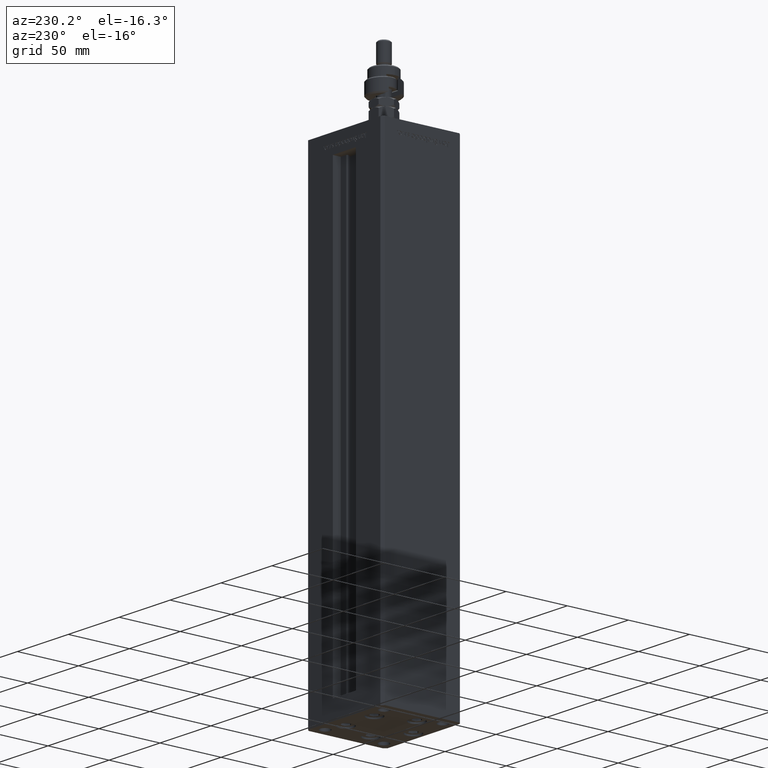
[diagram: clean part render]
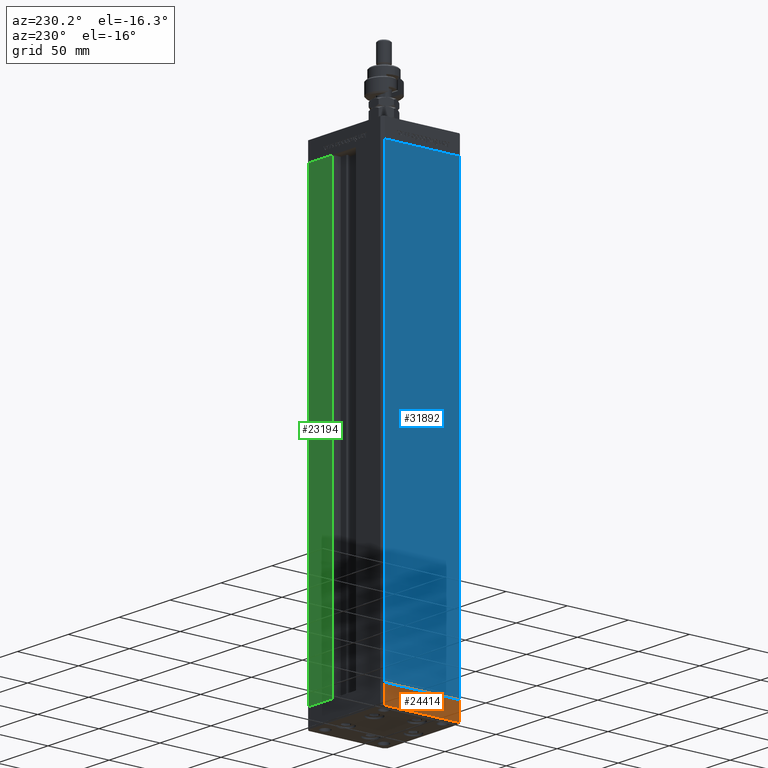
[diagram: same view with three faces highlighted in distinct colors, each labeled with its STEP entity id]
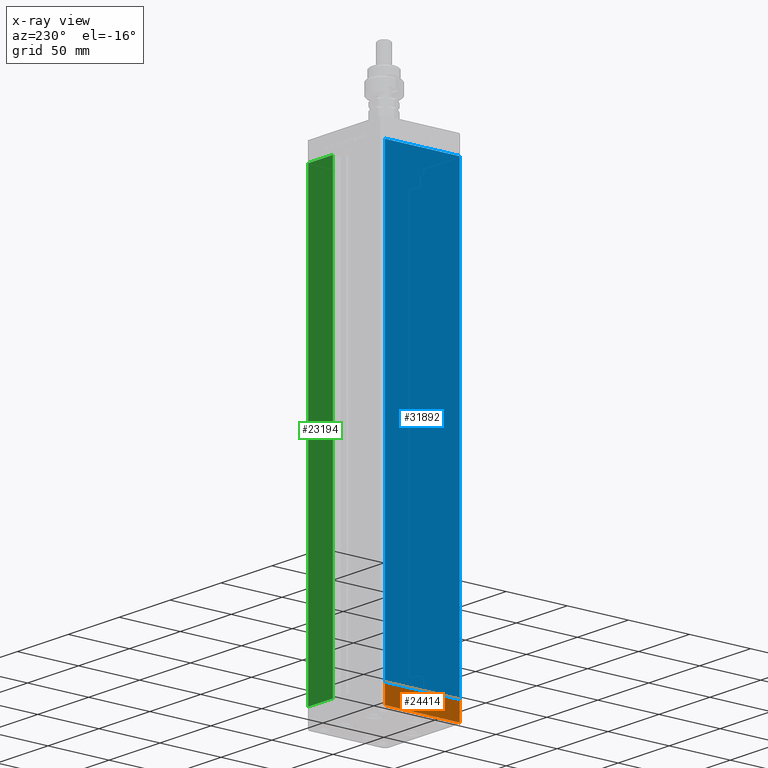
[diagram: x-ray of the same camera — body ghosted, the three highlighted faces saturated]
A machine part, auxiliary view with three faces highlighted in distinct colors.
The next image is the same camera in x-ray (body ghosted, the three faces saturated) — at least one of them is partly hidden behind the body in this view.
Their STEP definitions:

[orange] entity #24414 — the highlighted planar face has unit normal (-1, 0, 0).
#797 = VECTOR ( 'NONE', #6358, 1000.000000000000000 ) ;
#1475 = ORIENTED_EDGE ( 'NONE', *, *, #44749, .T. ) ;
#6358 = DIRECTION ( 'NONE',  ( -1.478780668045802821E-15, 1.000000000000000000, 0.000000000000000000 ) ) ;
#8360 = ORIENTED_EDGE ( 'NONE', *, *, #31696, .T. ) ;
#8759 = DIRECTION ( 'NONE',  ( 0.000000000000000000, 0.000000000000000000, 1.000000000000000000 ) ) ;
#9574 = LINE ( 'NONE', #38282, #36270 ) ;
#11578 = DIRECTION ( 'NONE',  ( 1.000000000000000000, 1.478780668045803018E-15, -0.000000000000000000 ) ) ;
#12737 = VERTEX_POINT ( 'NONE', #53341 ) ;
#15924 = LINE ( 'NONE', #50683, #48140 ) ;
#16729 = DIRECTION ( 'NONE',  ( -1.478780668045802821E-15, 1.000000000000000000, 0.000000000000000000 ) ) ;
#20604 = EDGE_CURVE ( 'NONE', #49460, #12737, #44450, .T. ) ;
#21338 = CARTESIAN_POINT ( 'NONE',  ( 37.49999999999992184, 30.50000000000001066, -15.00000000000000000 ) ) ;
#21935 = LINE ( 'NONE', #34622, #48370 ) ;
#23670 = CARTESIAN_POINT ( 'NONE',  ( 37.50000000000001421, -30.50000000000000711, -15.00000000000000000 ) ) ;
#24414 = ADVANCED_FACE ( 'NONE', ( #53829 ), #25102, .T. ) ;
#25102 = PLANE ( 'NONE',  #32538 ) ;
#26075 = EDGE_LOOP ( 'NONE', ( #30972, #37011, #1475, #8360 ) ) ;
#26078 = DIRECTION ( 'NONE',  ( 0.000000000000000000, 0.000000000000000000, 1.000000000000000000 ) ) ;
#28988 = DIRECTION ( 'NONE',  ( -1.478780668045803018E-15, 1.000000000000000000, 0.000000000000000000 ) ) ;
#29929 = VERTEX_POINT ( 'NONE', #21338 ) ;
#30972 = ORIENTED_EDGE ( 'NONE', *, *, #20604, .F. ) ;
#31696 = EDGE_CURVE ( 'NONE', #29929, #12737, #9574, .T. ) ;
#32538 = AXIS2_PLACEMENT_3D ( 'NONE', #49130, #11578, #28988 ) ;
#32790 = VERTEX_POINT ( 'NONE', #23670 ) ;
#34622 = CARTESIAN_POINT ( 'NONE',  ( 37.50000000000001421, -30.50000000000000711, -15.00000000000000000 ) ) ;
#36270 = VECTOR ( 'NONE', #8759, 1000.000000000000000 ) ;
#37011 = ORIENTED_EDGE ( 'NONE', *, *, #52774, .F. ) ;
#38282 = CARTESIAN_POINT ( 'NONE',  ( 37.49999999999992184, 30.50000000000001066, -15.00000000000000000 ) ) ;
#43460 = CARTESIAN_POINT ( 'NONE',  ( 37.50000000000001421, -30.50000000000000711, 0.000000000000000000 ) ) ;
#43644 = CARTESIAN_POINT ( 'NONE',  ( 37.50000000000001421, -30.50000000000000711, 0.000000000000000000 ) ) ;
#44450 = LINE ( 'NONE', #43644, #797 ) ;
#44749 = EDGE_CURVE ( 'NONE', #32790, #29929, #15924, .T. ) ;
#48140 = VECTOR ( 'NONE', #16729, 1000.000000000000000 ) ;
#48370 = VECTOR ( 'NONE', #26078, 1000.000000000000000 ) ;
#49130 = CARTESIAN_POINT ( 'NONE',  ( 37.50000000000001421, -30.50000000000000711, -15.00000000000000000 ) ) ;
#49460 = VERTEX_POINT ( 'NONE', #43460 ) ;
#50683 = CARTESIAN_POINT ( 'NONE',  ( 37.50000000000001421, -30.50000000000000711, -15.00000000000000000 ) ) ;
#52774 = EDGE_CURVE ( 'NONE', #32790, #49460, #21935, .T. ) ;
#53341 = CARTESIAN_POINT ( 'NONE',  ( 37.49999999999992184, 30.50000000000001066, 0.000000000000000000 ) ) ;
#53829 = FACE_OUTER_BOUND ( 'NONE', #26075, .T. ) ;

[blue] entity #31892 — the highlighted planar face has unit normal (1, 0, 0).
#2224 = CARTESIAN_POINT ( 'NONE',  ( -37.49999999999999289, -30.50000000000000000, 0.000000000000000000 ) ) ;
#2612 = VECTOR ( 'NONE', #45620, 1000.000000000000000 ) ;
#2646 = FACE_OUTER_BOUND ( 'NONE', #34105, .T. ) ;
#5186 = VECTOR ( 'NONE', #25203, 1000.000000000000000 ) ;
#6085 = VECTOR ( 'NONE', #41268, 1000.000000000000000 ) ;
#9632 = VERTEX_POINT ( 'NONE', #2224 ) ;
#10980 = DIRECTION ( 'NONE',  ( 2.275047181608927644E-16, -1.000000000000000000, 0.000000000000000000 ) ) ;
#13575 = LINE ( 'NONE', #22399, #20902 ) ;
#14154 = CARTESIAN_POINT ( 'NONE',  ( -37.49999999999999289, -30.50000000000000000, 356.0000000000000000 ) ) ;
#14262 = DIRECTION ( 'NONE',  ( -2.275047181608927644E-16, 1.000000000000000000, 0.000000000000000000 ) ) ;
#16921 = ORIENTED_EDGE ( 'NONE', *, *, #21332, .T. ) ;
#17220 = LINE ( 'NONE', #24429, #6085 ) ;
#18692 = ORIENTED_EDGE ( 'NONE', *, *, #47259, .F. ) ;
#19486 = CARTESIAN_POINT ( 'NONE',  ( -37.50000000000000711, 30.50000000000000000, 356.0000000000000000 ) ) ;
#20902 = VECTOR ( 'NONE', #10980, 1000.000000000000000 ) ;
#21236 = CARTESIAN_POINT ( 'NONE',  ( -37.50000000000000711, 30.50000000000000000, 356.0000000000000000 ) ) ;
#21294 = AXIS2_PLACEMENT_3D ( 'NONE', #19486, #39923, #14262 ) ;
#21332 = EDGE_CURVE ( 'NONE', #23732, #9632, #28797, .T. ) ;
#22399 = CARTESIAN_POINT ( 'NONE',  ( -37.50000000000000711, 30.50000000000000000, 356.0000000000000000 ) ) ;
#22540 = PLANE ( 'NONE',  #21294 ) ;
#23732 = VERTEX_POINT ( 'NONE', #52092 ) ;
#24255 = EDGE_CURVE ( 'NONE', #46180, #23732, #46986, .T. ) ;
#24372 = CARTESIAN_POINT ( 'NONE',  ( -37.50000000000000711, 30.50000000000000000, 0.000000000000000000 ) ) ;
#24429 = CARTESIAN_POINT ( 'NONE',  ( -37.49999999999999289, -30.50000000000000000, 356.0000000000000000 ) ) ;
#24688 = EDGE_CURVE ( 'NONE', #35265, #9632, #17220, .T. ) ;
#25203 = DIRECTION ( 'NONE',  ( -0.000000000000000000, -0.000000000000000000, -1.000000000000000000 ) ) ;
#28797 = LINE ( 'NONE', #24372, #2612 ) ;
#29885 = CARTESIAN_POINT ( 'NONE',  ( -37.50000000000000711, 30.50000000000000000, 356.0000000000000000 ) ) ;
#30496 = ORIENTED_EDGE ( 'NONE', *, *, #24255, .T. ) ;
#31892 = ADVANCED_FACE ( 'NONE', ( #2646 ), #22540, .F. ) ;
#34105 = EDGE_LOOP ( 'NONE', ( #16921, #39054, #18692, #30496 ) ) ;
#35265 = VERTEX_POINT ( 'NONE', #14154 ) ;
#39054 = ORIENTED_EDGE ( 'NONE', *, *, #24688, .F. ) ;
#39923 = DIRECTION ( 'NONE',  ( 1.000000000000000000, 2.275047181608927644E-16, -0.000000000000000000 ) ) ;
#41268 = DIRECTION ( 'NONE',  ( -0.000000000000000000, -0.000000000000000000, -1.000000000000000000 ) ) ;
#45620 = DIRECTION ( 'NONE',  ( 2.275047181608927644E-16, -1.000000000000000000, 0.000000000000000000 ) ) ;
#46180 = VERTEX_POINT ( 'NONE', #21236 ) ;
#46986 = LINE ( 'NONE', #29885, #5186 ) ;
#47259 = EDGE_CURVE ( 'NONE', #46180, #35265, #13575, .T. ) ;
#52092 = CARTESIAN_POINT ( 'NONE',  ( -37.50000000000000711, 30.50000000000000000, 0.000000000000000000 ) ) ;

[green] entity #23194 — the highlighted planar face has unit normal (0, -1, 0).
#24 = LINE ( 'NONE', #25689, #39364 ) ;
#3997 = EDGE_CURVE ( 'NONE', #23381, #9580, #30207, .T. ) ;
#6908 = AXIS2_PLACEMENT_3D ( 'NONE', #43989, #44258, #13905 ) ;
#9215 = DIRECTION ( 'NONE',  ( -1.000000000000000000, 0.000000000000000000, 0.000000000000000000 ) ) ;
#9580 = VERTEX_POINT ( 'NONE', #27635 ) ;
#11598 = ORIENTED_EDGE ( 'NONE', *, *, #14169, .T. ) ;
#12981 = DIRECTION ( 'NONE',  ( 1.000000000000000000, 0.000000000000000000, 0.000000000000000000 ) ) ;
#13294 = CARTESIAN_POINT ( 'NONE',  ( 35.50000000000000000, 32.49999999999999289, 0.000000000000000000 ) ) ;
#13709 = EDGE_CURVE ( 'NONE', #22129, #48532, #24, .T. ) ;
#13905 = DIRECTION ( 'NONE',  ( 0.000000000000000000, -0.000000000000000000, -1.000000000000000000 ) ) ;
#14169 = EDGE_CURVE ( 'NONE', #9580, #22129, #48771, .T. ) ;
#15642 = CARTESIAN_POINT ( 'NONE',  ( 11.25000000000000178, 32.49999999999999289, 0.000000000000000000 ) ) ;
#20354 = VECTOR ( 'NONE', #31691, 1000.000000000000000 ) ;
#22129 = VERTEX_POINT ( 'NONE', #25977 ) ;
#23194 = ADVANCED_FACE ( 'NONE', ( #47862 ), #27162, .F. ) ;
#23381 = VERTEX_POINT ( 'NONE', #13294 ) ;
#24200 = DIRECTION ( 'NONE',  ( -0.000000000000000000, -0.000000000000000000, 1.000000000000000000 ) ) ;
#24492 = CARTESIAN_POINT ( 'NONE',  ( 35.50000000000000000, 32.49999999999999289, 356.0000000000000000 ) ) ;
#25689 = CARTESIAN_POINT ( 'NONE',  ( -11.25000000000000178, 32.49999999999999289, 356.0000000000000000 ) ) ;
#25977 = CARTESIAN_POINT ( 'NONE',  ( 11.24999999999999467, 32.49999999999999289, 356.0000000000000000 ) ) ;
#26533 = EDGE_LOOP ( 'NONE', ( #42918, #11598, #31906, #42104 ) ) ;
#27162 = PLANE ( 'NONE',  #6908 ) ;
#27543 = LINE ( 'NONE', #24492, #20354 ) ;
#27635 = CARTESIAN_POINT ( 'NONE',  ( 11.25000000000000178, 32.49999999999999289, 0.000000000000000000 ) ) ;
#29623 = EDGE_CURVE ( 'NONE', #48532, #23381, #27543, .T. ) ;
#30207 = LINE ( 'NONE', #47038, #48901 ) ;
#31691 = DIRECTION ( 'NONE',  ( -0.000000000000000000, -0.000000000000000000, -1.000000000000000000 ) ) ;
#31906 = ORIENTED_EDGE ( 'NONE', *, *, #13709, .T. ) ;
#35368 = CARTESIAN_POINT ( 'NONE',  ( 35.50000000000000000, 32.49999999999999289, 356.0000000000000000 ) ) ;
#39364 = VECTOR ( 'NONE', #12981, 1000.000000000000000 ) ;
#41177 = VECTOR ( 'NONE', #24200, 1000.000000000000000 ) ;
#42104 = ORIENTED_EDGE ( 'NONE', *, *, #29623, .T. ) ;
#42918 = ORIENTED_EDGE ( 'NONE', *, *, #3997, .T. ) ;
#43989 = CARTESIAN_POINT ( 'NONE',  ( -11.25000000000000178, 32.49999999999999289, 356.0000000000000000 ) ) ;
#44258 = DIRECTION ( 'NONE',  ( 0.000000000000000000, -1.000000000000000000, 0.000000000000000000 ) ) ;
#47038 = CARTESIAN_POINT ( 'NONE',  ( -11.25000000000000178, 32.49999999999999289, 0.000000000000000000 ) ) ;
#47862 = FACE_OUTER_BOUND ( 'NONE', #26533, .T. ) ;
#48532 = VERTEX_POINT ( 'NONE', #35368 ) ;
#48771 = LINE ( 'NONE', #15642, #41177 ) ;
#48901 = VECTOR ( 'NONE', #9215, 1000.000000000000000 ) ;